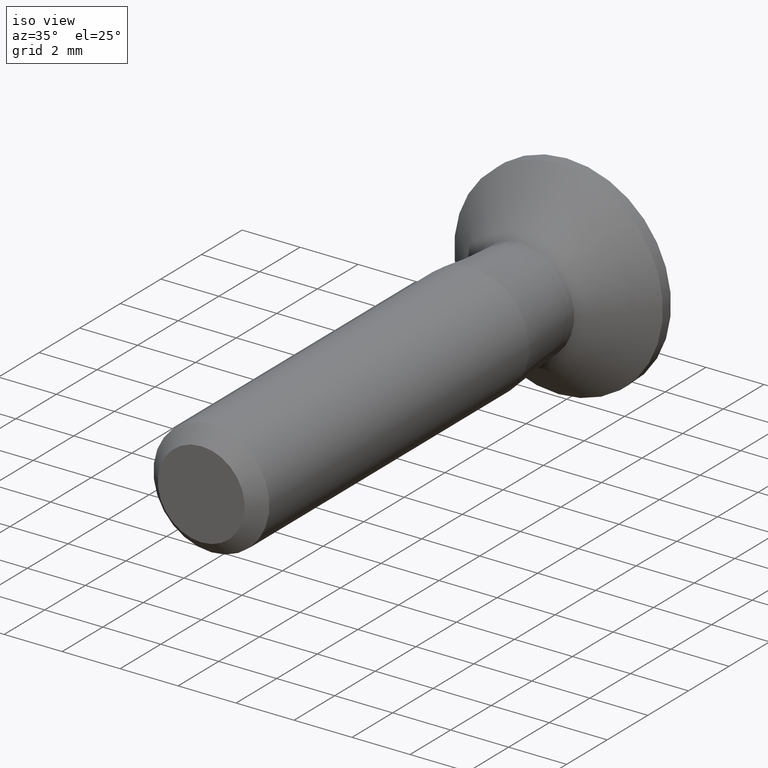
[diagram: clean part render]
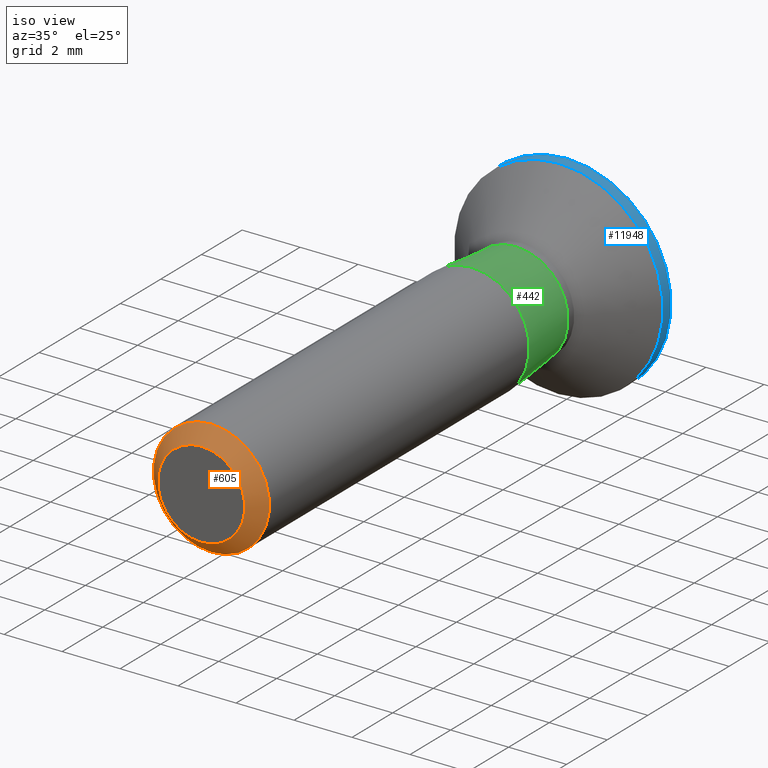
[diagram: same view with three faces highlighted in distinct colors, each labeled with its STEP entity id]
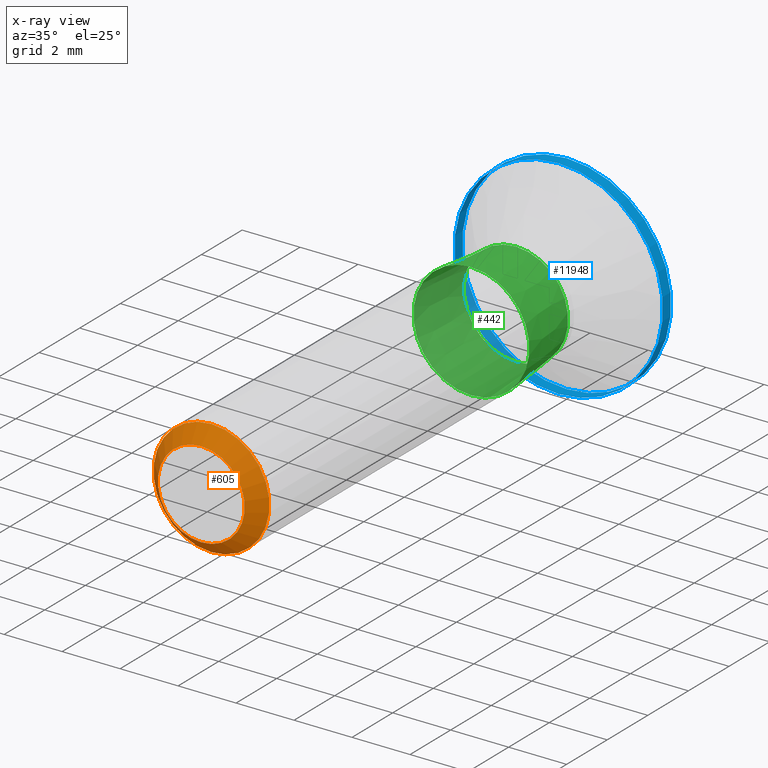
[diagram: x-ray of the same camera — body ghosted, the three highlighted faces saturated]
A machine part, iso view with three faces highlighted in distinct colors.
The next image is the same camera in x-ray (body ghosted, the three faces saturated) — at least one of them is partly hidden behind the body in this view.
Their STEP definitions:

[orange] entity #605 — the highlighted conical surface has half-angle 45 deg.
#377 = AXIS2_PLACEMENT_3D ( 'NONE', #13369, #11101, #6544 ) ;
#564 = DIRECTION ( 'NONE',  ( 0.0000000000000000000, 0.0000000000000000000, 1.000000000000000000 ) ) ;
#605 = ADVANCED_FACE ( 'NONE', ( #7199, #4201 ), #10403, .T. ) ;
#1607 = CIRCLE ( 'NONE', #2907, 1.499999999999999600 ) ;
#1766 = EDGE_CURVE ( 'NONE', #9782, #9782, #2791, .T. ) ;
#2411 = CARTESIAN_POINT ( 'NONE',  ( 0.0000000000000000000, -3.061616997868383600E-017, 0.0000000000000000000 ) ) ;
#2791 = CIRCLE ( 'NONE', #377, 2.000000000000000900 ) ;
#2907 = AXIS2_PLACEMENT_3D ( 'NONE', #2411, #13540, #11269 ) ;
#3943 = EDGE_LOOP ( 'NONE', ( #13529 ) ) ;
#3951 = DIRECTION ( 'NONE',  ( 0.0000000000000000000, 1.000000000000000000, 0.0000000000000000000 ) ) ;
#4201 = FACE_BOUND ( 'NONE', #3943, .T. ) ;
#5524 = VERTEX_POINT ( 'NONE', #10308 ) ;
#6544 = DIRECTION ( 'NONE',  ( 0.0000000000000000000, 0.0000000000000000000, -1.000000000000000000 ) ) ;
#7013 = AXIS2_PLACEMENT_3D ( 'NONE', #7313, #3951, #564 ) ;
#7199 = FACE_OUTER_BOUND ( 'NONE', #8979, .T. ) ;
#7313 = CARTESIAN_POINT ( 'NONE',  ( 0.0000000000000000000, -3.061616997868383600E-017, 0.0000000000000000000 ) ) ;
#8072 = CARTESIAN_POINT ( 'NONE',  ( 0.0000000000000000000, 0.5000000000000013300, -2.000000000000000900 ) ) ;
#8349 = EDGE_CURVE ( 'NONE', #5524, #5524, #1607, .T. ) ;
#8979 = EDGE_LOOP ( 'NONE', ( #11699 ) ) ;
#9782 = VERTEX_POINT ( 'NONE', #8072 ) ;
#10308 = CARTESIAN_POINT ( 'NONE',  ( 0.0000000000000000000, -3.061616997868383600E-017, -1.499999999999999600 ) ) ;
#10403 = CONICAL_SURFACE ( 'NONE', #7013, 1.499999999999999600, 0.7853981633974482800 ) ;
#11101 = DIRECTION ( 'NONE',  ( 0.0000000000000000000, 1.000000000000000000, 0.0000000000000000000 ) ) ;
#11269 = DIRECTION ( 'NONE',  ( 0.0000000000000000000, 0.0000000000000000000, -1.000000000000000000 ) ) ;
#11699 = ORIENTED_EDGE ( 'NONE', *, *, #1766, .F. ) ;
#13369 = CARTESIAN_POINT ( 'NONE',  ( 0.0000000000000000000, 0.5000000000000013300, 0.0000000000000000000 ) ) ;
#13529 = ORIENTED_EDGE ( 'NONE', *, *, #8349, .F. ) ;
#13540 = DIRECTION ( 'NONE',  ( -0.0000000000000000000, -1.000000000000000000, -0.0000000000000000000 ) ) ;

[blue] entity #11948 — the highlighted cylindrical surface (bore or boss wall) has radius 3.6 mm, axis along (-0, -1, -0).
#313 = AXIS2_PLACEMENT_3D ( 'NONE', #11213, #4434, #12447 ) ;
#884 = ORIENTED_EDGE ( 'NONE', *, *, #11507, .T. ) ;
#2351 = CIRCLE ( 'NONE', #6268, 3.600000000000000100 ) ;
#3430 = VERTEX_POINT ( 'NONE', #5692 ) ;
#3550 = CARTESIAN_POINT ( 'NONE',  ( 0.0000000000000000000, 17.60000000000001900, -3.600000000000000100 ) ) ;
#3985 = CIRCLE ( 'NONE', #10380, 3.600000000000000100 ) ;
#4269 = DIRECTION ( 'NONE',  ( 0.0000000000000000000, 0.0000000000000000000, -1.000000000000000000 ) ) ;
#4434 = DIRECTION ( 'NONE',  ( -0.0000000000000000000, -1.000000000000000000, -0.0000000000000000000 ) ) ;
#4863 = FACE_OUTER_BOUND ( 'NONE', #9902, .T. ) ;
#5004 = EDGE_CURVE ( 'NONE', #7308, #7308, #2351, .T. ) ;
#5284 = DIRECTION ( 'NONE',  ( -0.0000000000000000000, -1.000000000000000000, -0.0000000000000000000 ) ) ;
#5692 = CARTESIAN_POINT ( 'NONE',  ( 0.0000000000000000000, 18.00000000000000000, -3.600000000000000100 ) ) ;
#5970 = ORIENTED_EDGE ( 'NONE', *, *, #5004, .F. ) ;
#6268 = AXIS2_PLACEMENT_3D ( 'NONE', #7513, #5284, #13193 ) ;
#6355 = EDGE_LOOP ( 'NONE', ( #5970 ) ) ;
#7308 = VERTEX_POINT ( 'NONE', #3550 ) ;
#7513 = CARTESIAN_POINT ( 'NONE',  ( 0.0000000000000000000, 17.60000000000001900, 0.0000000000000000000 ) ) ;
#8591 = CYLINDRICAL_SURFACE ( 'NONE', #313, 3.600000000000000100 ) ;
#9296 = FACE_OUTER_BOUND ( 'NONE', #6355, .T. ) ;
#9902 = EDGE_LOOP ( 'NONE', ( #884 ) ) ;
#10380 = AXIS2_PLACEMENT_3D ( 'NONE', #11047, #11150, #4269 ) ;
#11047 = CARTESIAN_POINT ( 'NONE',  ( 0.0000000000000000000, 18.00000000000000000, 0.0000000000000000000 ) ) ;
#11150 = DIRECTION ( 'NONE',  ( -0.0000000000000000000, -1.000000000000000000, -0.0000000000000000000 ) ) ;
#11213 = CARTESIAN_POINT ( 'NONE',  ( 0.0000000000000000000, 0.0000000000000000000, 0.0000000000000000000 ) ) ;
#11507 = EDGE_CURVE ( 'NONE', #3430, #3430, #3985, .T. ) ;
#11948 = ADVANCED_FACE ( 'NONE', ( #4863, #9296 ), #8591, .T. ) ;
#12447 = DIRECTION ( 'NONE',  ( 0.0000000000000000000, 0.0000000000000000000, -1.000000000000000000 ) ) ;
#13193 = DIRECTION ( 'NONE',  ( 0.0000000000000000000, 0.0000000000000000000, -1.000000000000000000 ) ) ;

[green] entity #442 — the highlighted conical surface has half-angle 5.194 deg.
#442 = ADVANCED_FACE ( 'NONE', ( #13412, #1246 ), #4021, .T. ) ;
#455 = AXIS2_PLACEMENT_3D ( 'NONE', #5780, #4796, #3672 ) ;
#476 = EDGE_CURVE ( 'NONE', #647, #647, #10222, .T. ) ;
#647 = VERTEX_POINT ( 'NONE', #11391 ) ;
#651 = ORIENTED_EDGE ( 'NONE', *, *, #2515, .T. ) ;
#1246 = FACE_OUTER_BOUND ( 'NONE', #9184, .T. ) ;
#2279 = CARTESIAN_POINT ( 'NONE',  ( 0.0000000000000000000, 13.29999999999999700, 0.0000000000000000000 ) ) ;
#2515 = EDGE_CURVE ( 'NONE', #14196, #14196, #13003, .T. ) ;
#2887 = AXIS2_PLACEMENT_3D ( 'NONE', #12211, #12406, #5466 ) ;
#3672 = DIRECTION ( 'NONE',  ( 0.0000000000000000000, 0.0000000000000000000, -1.000000000000000000 ) ) ;
#4021 = CONICAL_SURFACE ( 'NONE', #12045, 2.000000000000000900, 0.09065988720074533200 ) ;
#4761 = CARTESIAN_POINT ( 'NONE',  ( 0.0000000000000000000, 15.49999999999999800, -1.800000000000000500 ) ) ;
#4796 = DIRECTION ( 'NONE',  ( -0.0000000000000000000, -1.000000000000000000, -0.0000000000000000000 ) ) ;
#5466 = DIRECTION ( 'NONE',  ( 0.0000000000000000000, 0.0000000000000000000, -1.000000000000000000 ) ) ;
#5640 = DIRECTION ( 'NONE',  ( 0.0000000000000000000, 0.0000000000000000000, -1.000000000000000000 ) ) ;
#5780 = CARTESIAN_POINT ( 'NONE',  ( 0.0000000000000000000, 13.29999999999999700, 0.0000000000000000000 ) ) ;
#9184 = EDGE_LOOP ( 'NONE', ( #14540 ) ) ;
#10148 = DIRECTION ( 'NONE',  ( -0.0000000000000000000, -1.000000000000000000, -0.0000000000000000000 ) ) ;
#10222 = CIRCLE ( 'NONE', #455, 2.000000000000000900 ) ;
#11391 = CARTESIAN_POINT ( 'NONE',  ( 0.0000000000000000000, 13.29999999999999700, -2.000000000000000900 ) ) ;
#12045 = AXIS2_PLACEMENT_3D ( 'NONE', #2279, #10148, #5640 ) ;
#12211 = CARTESIAN_POINT ( 'NONE',  ( 0.0000000000000000000, 15.49999999999999800, 0.0000000000000000000 ) ) ;
#12406 = DIRECTION ( 'NONE',  ( -0.0000000000000000000, -1.000000000000000000, -0.0000000000000000000 ) ) ;
#13003 = CIRCLE ( 'NONE', #2887, 1.800000000000000500 ) ;
#13412 = FACE_BOUND ( 'NONE', #13444, .T. ) ;
#13444 = EDGE_LOOP ( 'NONE', ( #651 ) ) ;
#14196 = VERTEX_POINT ( 'NONE', #4761 ) ;
#14540 = ORIENTED_EDGE ( 'NONE', *, *, #476, .F. ) ;